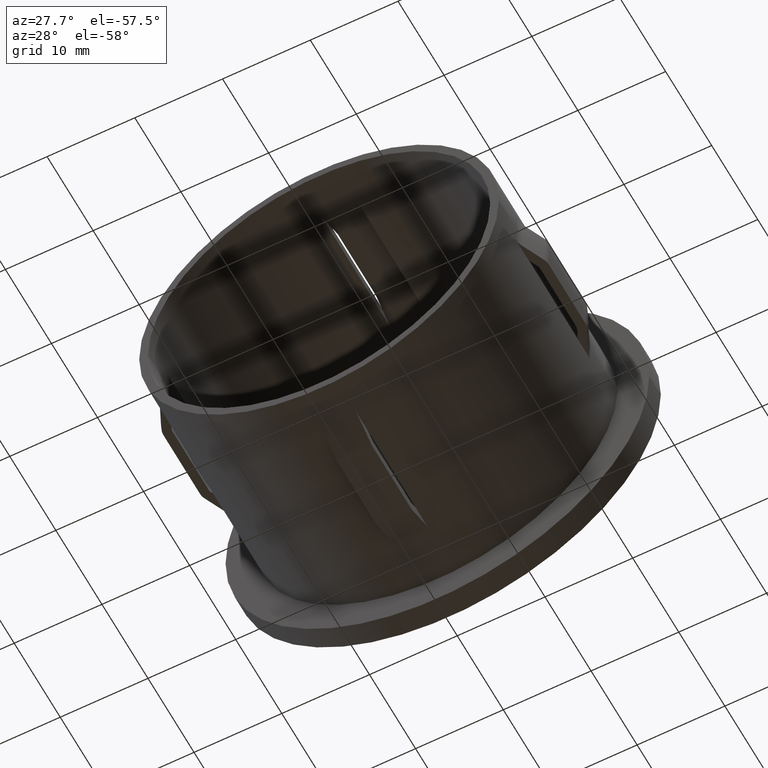
[diagram: clean part render]
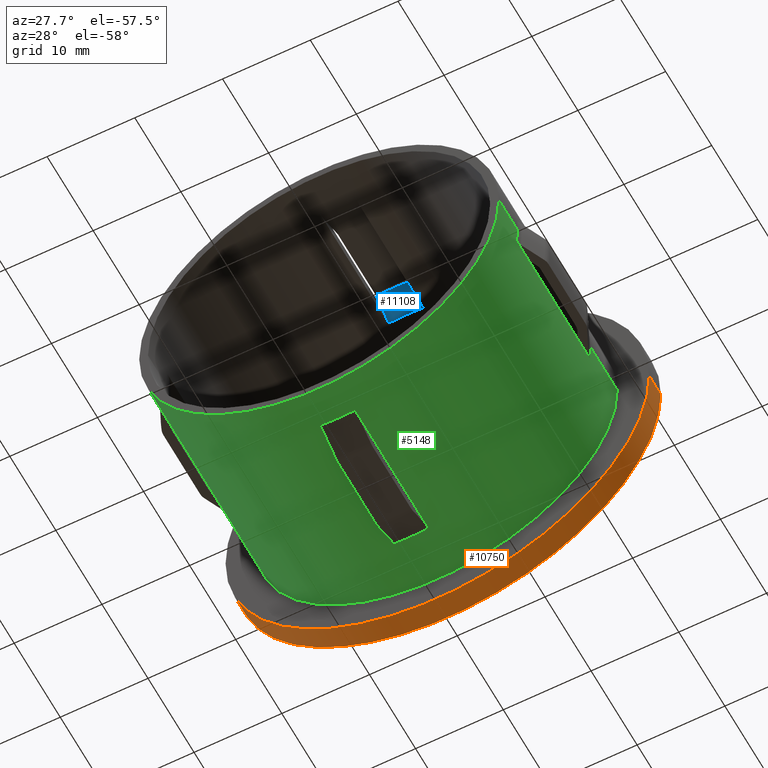
[diagram: same view with three faces highlighted in distinct colors, each labeled with its STEP entity id]
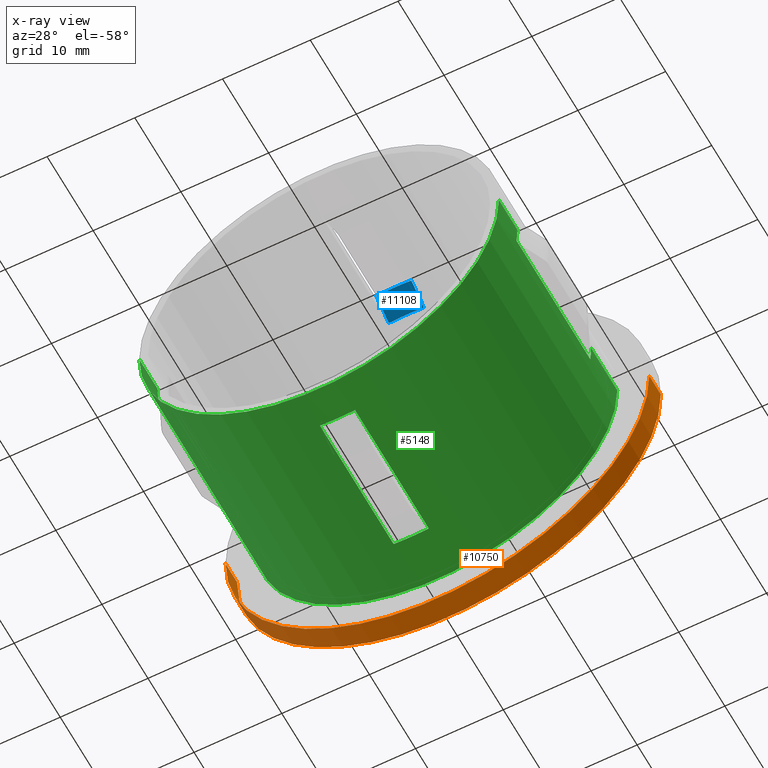
[diagram: x-ray of the same camera — body ghosted, the three highlighted faces saturated]
A machine part, auxiliary view with three faces highlighted in distinct colors.
The next image is the same camera in x-ray (body ghosted, the three faces saturated) — at least one of them is partly hidden behind the body in this view.
Their STEP definitions:

[orange] entity #10750 — the highlighted cylindrical surface (partial cylindrical patch) has radius 24.15 mm, axis along (-0, 1, -0).
#171 = CARTESIAN_POINT ( 'NONE',  ( -24.14999999999999900, 25.69999999999999200, 0.0000000000000000000 ) ) ;
#394 = DIRECTION ( 'NONE',  ( -1.714505518806297100E-016, 1.000000000000000000, -0.0000000000000000000 ) ) ;
#1303 = AXIS2_PLACEMENT_3D ( 'NONE', #8948, #394, #2562 ) ;
#1698 = VERTEX_POINT ( 'NONE', #3394 ) ;
#1744 = DIRECTION ( 'NONE',  ( -1.000000000000000000, -1.436623996668163300E-016, 0.0000000000000000000 ) ) ;
#1772 = VECTOR ( 'NONE', #6225, 1000.000000000000000 ) ;
#2083 = ORIENTED_EDGE ( 'NONE', *, *, #5008, .F. ) ;
#2562 = DIRECTION ( 'NONE',  ( -1.000000000000000000, -1.436623996668163300E-016, 0.0000000000000000000 ) ) ;
#2816 = LINE ( 'NONE', #7230, #11028 ) ;
#3081 = DIRECTION ( 'NONE',  ( -1.000000000000000000, -1.436623996668163300E-016, 0.0000000000000000000 ) ) ;
#3238 = VERTEX_POINT ( 'NONE', #3967 ) ;
#3311 = EDGE_CURVE ( 'NONE', #5087, #3238, #2816, .T. ) ;
#3394 = CARTESIAN_POINT ( 'NONE',  ( -24.14999999999999900, 28.19999999999999200, 0.0000000000000000000 ) ) ;
#3967 = CARTESIAN_POINT ( 'NONE',  ( 24.14999999999999900, 28.19999999999999900, 2.957522019940857900E-015 ) ) ;
#4310 = EDGE_CURVE ( 'NONE', #12518, #1698, #10157, .T. ) ;
#4425 = ORIENTED_EDGE ( 'NONE', *, *, #4310, .T. ) ;
#4917 = CARTESIAN_POINT ( 'NONE',  ( -24.14999999999999900, 28.19999999999999600, 0.0000000000000000000 ) ) ;
#5008 = EDGE_CURVE ( 'NONE', #3238, #1698, #6644, .T. ) ;
#5087 = VERTEX_POINT ( 'NONE', #9822 ) ;
#5155 = AXIS2_PLACEMENT_3D ( 'NONE', #12770, #12677, #1744 ) ;
#5967 = ORIENTED_EDGE ( 'NONE', *, *, #12761, .T. ) ;
#6225 = DIRECTION ( 'NONE',  ( -1.714505518806297100E-016, 1.000000000000000000, -0.0000000000000000000 ) ) ;
#6576 = CYLINDRICAL_SURFACE ( 'NONE', #1303, 24.14999999999999900 ) ;
#6644 = CIRCLE ( 'NONE', #12626, 24.14999999999999900 ) ;
#7230 = CARTESIAN_POINT ( 'NONE',  ( 24.14999999999999900, 28.20000000000000300, 2.957522019940857900E-015 ) ) ;
#8387 = DIRECTION ( 'NONE',  ( -1.714505518806297100E-016, 1.000000000000000000, -0.0000000000000000000 ) ) ;
#8619 = FACE_OUTER_BOUND ( 'NONE', #13494, .T. ) ;
#8948 = CARTESIAN_POINT ( 'NONE',  ( -2.449293598294708900E-016, 28.19999999999999900, 0.0000000000000000000 ) ) ;
#9506 = DIRECTION ( 'NONE',  ( -1.714505518806297100E-016, 1.000000000000000000, -0.0000000000000000000 ) ) ;
#9822 = CARTESIAN_POINT ( 'NONE',  ( 24.14999999999999900, 25.69999999999999900, 2.957522019940857900E-015 ) ) ;
#10157 = LINE ( 'NONE', #4917, #1772 ) ;
#10250 = ORIENTED_EDGE ( 'NONE', *, *, #3311, .F. ) ;
#10750 = ADVANCED_FACE ( 'NONE', ( #8619 ), #6576, .T. ) ;
#11028 = VECTOR ( 'NONE', #9506, 1000.000000000000000 ) ;
#12518 = VERTEX_POINT ( 'NONE', #171 ) ;
#12626 = AXIS2_PLACEMENT_3D ( 'NONE', #14003, #8387, #3081 ) ;
#12677 = DIRECTION ( 'NONE',  ( -1.714505518806297100E-016, 1.000000000000000000, -0.0000000000000000000 ) ) ;
#12761 = EDGE_CURVE ( 'NONE', #5087, #12518, #13196, .T. ) ;
#12770 = CARTESIAN_POINT ( 'NONE',  ( 1.836970198721039300E-016, 25.69999999999999600, 0.0000000000000000000 ) ) ;
#13196 = CIRCLE ( 'NONE', #5155, 24.14999999999999900 ) ;
#13494 = EDGE_LOOP ( 'NONE', ( #10250, #5967, #4425, #2083 ) ) ;
#14003 = CARTESIAN_POINT ( 'NONE',  ( -2.449293598294701500E-016, 28.19999999999999600, 0.0000000000000000000 ) ) ;

[blue] entity #11108 — the highlighted conical surface has half-angle 24.912 deg.
#398 = ORIENTED_EDGE ( 'NONE', *, *, #6013, .T. ) ;
#621 = ORIENTED_EDGE ( 'NONE', *, *, #2278, .F. ) ;
#769 = CARTESIAN_POINT ( 'NONE',  ( -1.999999999999996200, 18.94692731722802000, 19.63099760598235100 ) ) ;
#830 = CARTESIAN_POINT ( 'NONE',  ( 2.000000000000004900, 18.94692731722803500, 19.63099760598238300 ) ) ;
#886 = CIRCLE ( 'NONE', #11032, 19.73261429730196800 ) ;
#1216 = ORIENTED_EDGE ( 'NONE', *, *, #13238, .T. ) ;
#1516 = CARTESIAN_POINT ( 'NONE',  ( -1.999999999999996200, 17.05315212496558200, 20.51490939557035300 ) ) ;
#1700 = CARTESIAN_POINT ( 'NONE',  ( -1.999999999999996200, 16.21061453655438800, 20.90803797569656600 ) ) ;
#1852 = AXIS2_PLACEMENT_3D ( 'NONE', #11457, #2135, #12272 ) ;
#1891 = CARTESIAN_POINT ( 'NONE',  ( -1.999999999999996200, 17.39135533050912100, 20.35707982279013400 ) ) ;
#1908 = VERTEX_POINT ( 'NONE', #7125 ) ;
#2113 = AXIS2_PLACEMENT_3D ( 'NONE', #9776, #12962, #13059 ) ;
#2135 = DIRECTION ( 'NONE',  ( 1.714505518806297100E-016, -1.000000000000000000, 0.0000000000000000000 ) ) ;
#2237 = CARTESIAN_POINT ( 'NONE',  ( 2.000000000000004900, 16.57012973044801600, 20.74029511923067700 ) ) ;
#2278 = EDGE_CURVE ( 'NONE', #13425, #13890, #5186, .T. ) ;
#2336 = CARTESIAN_POINT ( 'NONE',  ( 2.000000000000004900, 17.05315212496557500, 20.51490939557035300 ) ) ;
#2979 = FACE_OUTER_BOUND ( 'NONE', #9151, .T. ) ;
#3246 = CARTESIAN_POINT ( 'NONE',  ( 2.000000000000004900, 17.29465829608850000, 20.40220576310316900 ) ) ;
#3449 = B_SPLINE_CURVE_WITH_KNOTS ( 'NONE', 3,
 ( #9247, #1516, #3896, #11546, #8210, #3806, #1700 ),
 .UNSPECIFIED., .F., .F.,
 ( 4, 3, 4 ),
 ( 0.004445768728191110800, 0.005245297360551536900, 0.005642019976791071500 ),
 .UNSPECIFIED. ) ;
#3806 = CARTESIAN_POINT ( 'NONE',  ( -1.999999999999996200, 16.33045372002804300, 20.85212537378268000 ) ) ;
#3896 = CARTESIAN_POINT ( 'NONE',  ( -1.999999999999996200, 16.81164254834684600, 20.62760573085573100 ) ) ;
#4975 = VERTEX_POINT ( 'NONE', #5074 ) ;
#5034 = ORIENTED_EDGE ( 'NONE', *, *, #13969, .T. ) ;
#5074 = CARTESIAN_POINT ( 'NONE',  ( -1.999999999999996200, 16.21061453655438800, 20.90803797569656600 ) ) ;
#5076 = EDGE_CURVE ( 'NONE', #4975, #1908, #8305, .T. ) ;
#5186 = B_SPLINE_CURVE_WITH_KNOTS ( 'NONE', 3,
 ( #769, #7283, #6327, #13962, #1891, #13813, #10542 ),
 .UNSPECIFIED., .F., .F.,
 ( 4, 3, 4 ),
 ( 0.004111649119950974700, 0.005774977657220927600, 0.005935040142207855700 ),
 .UNSPECIFIED. ) ;
#5536 = CARTESIAN_POINT ( 'NONE',  ( 2.000000000000004900, 18.44453540345014300, 19.86553810285747400 ) ) ;
#5577 = CARTESIAN_POINT ( 'NONE',  ( 2.000000000000004900, 16.45029212435912300, 20.79621110187691400 ) ) ;
#5627 = CARTESIAN_POINT ( 'NONE',  ( 2.000000000000004900, 17.94212695751784600, 20.10004319004825000 ) ) ;
#5792 = CARTESIAN_POINT ( 'NONE',  ( 1.341515058223361400E-015, 18.94692731722803500, 0.0000000000000000000 ) ) ;
#6013 = EDGE_CURVE ( 'NONE', #9408, #11445, #10450, .T. ) ;
#6327 = CARTESIAN_POINT ( 'NONE',  ( -1.999999999999996200, 17.94212695751784600, 20.10004319004825000 ) ) ;
#6717 = CARTESIAN_POINT ( 'NONE',  ( 2.000000000000004900, 16.81164254834684600, 20.62760573085573100 ) ) ;
#6842 = ORIENTED_EDGE ( 'NONE', *, *, #8540, .F. ) ;
#7125 = CARTESIAN_POINT ( 'NONE',  ( 2.000000000000004900, 16.21061453655438800, 20.90803797569656600 ) ) ;
#7283 = CARTESIAN_POINT ( 'NONE',  ( -1.999999999999996200, 18.44453540345014600, 19.86553810285747400 ) ) ;
#7747 = CARTESIAN_POINT ( 'NONE',  ( 2.000000000000004900, 17.39135533050911800, 20.35707982279013400 ) ) ;
#7814 = DIRECTION ( 'NONE',  ( -1.000000000000000000, -1.758229750848568500E-016, 0.0000000000000000000 ) ) ;
#7998 = CARTESIAN_POINT ( 'NONE',  ( 2.000000000000004900, 17.29465829608850000, 20.40220576310316900 ) ) ;
#8210 = CARTESIAN_POINT ( 'NONE',  ( -1.999999999999996200, 16.45029212435912300, 20.79621110187691400 ) ) ;
#8305 = CIRCLE ( 'NONE', #2113, 21.00347714053960500 ) ;
#8391 = CARTESIAN_POINT ( 'NONE',  ( -1.999999999999996200, 17.29465829608850300, 20.40220576310316500 ) ) ;
#8540 = EDGE_CURVE ( 'NONE', #13890, #4975, #3449, .T. ) ;
#8866 = B_SPLINE_CURVE_WITH_KNOTS ( 'NONE', 3,
 ( #13157, #2336, #6717, #2237, #5577, #12919, #8955 ),
 .UNSPECIFIED., .F., .F.,
 ( 4, 3, 4 ),
 ( 0.004445768728191113400, 0.005245297360551531700, 0.005642019976791062800 ),
 .UNSPECIFIED. ) ;
#8955 = CARTESIAN_POINT ( 'NONE',  ( 2.000000000000004900, 16.21061453655438800, 20.90803797569656600 ) ) ;
#9151 = EDGE_LOOP ( 'NONE', ( #1216, #398, #5034, #10503, #6842, #621 ) ) ;
#9247 = CARTESIAN_POINT ( 'NONE',  ( -1.999999999999996200, 17.29465829608850300, 20.40220576310316500 ) ) ;
#9408 = VERTEX_POINT ( 'NONE', #830 ) ;
#9776 = CARTESIAN_POINT ( 'NONE',  ( 1.810657394587878400E-015, 16.21061453655438800, 0.0000000000000000000 ) ) ;
#10003 = DIRECTION ( 'NONE',  ( -1.714505518806297100E-016, 1.000000000000000000, -0.0000000000000000000 ) ) ;
#10450 = B_SPLINE_CURVE_WITH_KNOTS ( 'NONE', 3,
 ( #12167, #5536, #5627, #11035, #7747, #12127, #3246 ),
 .UNSPECIFIED., .F., .F.,
 ( 4, 3, 4 ),
 ( 0.004111649119950971200, 0.005774977657220923200, 0.005935040142207855700 ),
 .UNSPECIFIED. ) ;
#10503 = ORIENTED_EDGE ( 'NONE', *, *, #5076, .F. ) ;
#10542 = CARTESIAN_POINT ( 'NONE',  ( -1.999999999999996200, 17.29465829608850300, 20.40220576310316500 ) ) ;
#11032 = AXIS2_PLACEMENT_3D ( 'NONE', #5792, #10003, #7814 ) ;
#11035 = CARTESIAN_POINT ( 'NONE',  ( 2.000000000000004900, 17.43970364157326000, 20.33451641090529100 ) ) ;
#11108 = ADVANCED_FACE ( 'NONE', ( #2979 ), #13888, .F. ) ;
#11330 = CARTESIAN_POINT ( 'NONE',  ( -1.999999999999996200, 18.94692731722802000, 19.63099760598235100 ) ) ;
#11445 = VERTEX_POINT ( 'NONE', #7998 ) ;
#11457 = CARTESIAN_POINT ( 'NONE',  ( 1.341515058223361400E-015, 18.94692731722803500, 0.0000000000000000000 ) ) ;
#11546 = CARTESIAN_POINT ( 'NONE',  ( -1.999999999999996200, 16.57012973044801600, 20.74029511923067700 ) ) ;
#12127 = CARTESIAN_POINT ( 'NONE',  ( 2.000000000000004900, 17.34300688155723000, 20.37964293921490000 ) ) ;
#12167 = CARTESIAN_POINT ( 'NONE',  ( 2.000000000000004900, 18.94692731722803500, 19.63099760598238300 ) ) ;
#12272 = DIRECTION ( 'NONE',  ( 1.000000000000000000, 1.758229750848568500E-016, 0.0000000000000000000 ) ) ;
#12919 = CARTESIAN_POINT ( 'NONE',  ( 2.000000000000004900, 16.33045372002804300, 20.85212537378268000 ) ) ;
#12962 = DIRECTION ( 'NONE',  ( -1.714505518806297100E-016, 1.000000000000000000, -0.0000000000000000000 ) ) ;
#13059 = DIRECTION ( 'NONE',  ( -1.000000000000000000, -1.651844086928398800E-016, 0.0000000000000000000 ) ) ;
#13157 = CARTESIAN_POINT ( 'NONE',  ( 2.000000000000004900, 17.29465829608850000, 20.40220576310316900 ) ) ;
#13238 = EDGE_CURVE ( 'NONE', #13425, #9408, #886, .T. ) ;
#13425 = VERTEX_POINT ( 'NONE', #11330 ) ;
#13813 = CARTESIAN_POINT ( 'NONE',  ( -1.999999999999996200, 17.34300688155723300, 20.37964293921489700 ) ) ;
#13888 = CONICAL_SURFACE ( 'NONE', #1852, 19.73261429730196800, 0.4348000597357492600 ) ;
#13890 = VERTEX_POINT ( 'NONE', #8391 ) ;
#13962 = CARTESIAN_POINT ( 'NONE',  ( -1.999999999999996200, 17.43970364157326000, 20.33451641090529100 ) ) ;
#13969 = EDGE_CURVE ( 'NONE', #11445, #1908, #8866, .T. ) ;

[green] entity #5148 — the highlighted cylindrical surface (partial cylindrical patch) has radius 20.5 mm, axis along (-0, 1, -0).
#22 = DIRECTION ( 'NONE',  ( -1.714505518806297100E-016, 1.000000000000000000, -0.0000000000000000000 ) ) ;
#39 = LINE ( 'NONE', #11470, #5701 ) ;
#125 = VERTEX_POINT ( 'NONE', #10366 ) ;
#145 = DIRECTION ( 'NONE',  ( -1.714505518806297100E-016, 1.000000000000000000, -0.0000000000000000000 ) ) ;
#182 = ORIENTED_EDGE ( 'NONE', *, *, #7863, .F. ) ;
#269 = DIRECTION ( 'NONE',  ( -0.0000000000000000000, -1.000000000000000000, -0.0000000000000000000 ) ) ;
#280 = CIRCLE ( 'NONE', #9067, 20.49999999999999600 ) ;
#287 = DIRECTION ( 'NONE',  ( 0.0000000000000000000, -1.000000000000000000, 0.0000000000000000000 ) ) ;
#489 = CARTESIAN_POINT ( 'NONE',  ( -20.49999999999999300, 3.999999999999993300, 0.0000000000000000000 ) ) ;
#539 = EDGE_CURVE ( 'NONE', #1850, #5371, #9519, .T. ) ;
#730 = VERTEX_POINT ( 'NONE', #8797 ) ;
#770 = VERTEX_POINT ( 'NONE', #2353 ) ;
#806 = EDGE_CURVE ( 'NONE', #7692, #770, #11579, .T. ) ;
#900 = CARTESIAN_POINT ( 'NONE',  ( 20.40220576310317200, 17.29465829608849600, -2.000000000000000000 ) ) ;
#966 = EDGE_CURVE ( 'NONE', #3933, #9298, #9867, .T. ) ;
#1024 = DIRECTION ( 'NONE',  ( -1.714505518806297100E-016, 1.000000000000000000, -0.0000000000000000000 ) ) ;
#1039 = VERTEX_POINT ( 'NONE', #3961 ) ;
#1066 = DIRECTION ( 'NONE',  ( -1.000000000000000000, -1.692413147294446200E-016, 0.0000000000000000000 ) ) ;
#1154 = CARTESIAN_POINT ( 'NONE',  ( -1.999999999999996200, 51.72464896776082800, -20.40220576310316900 ) ) ;
#1162 = CARTESIAN_POINT ( 'NONE',  ( 3.904173995681768100E-015, 3.999999999999996400, 0.0000000000000000000 ) ) ;
#1364 = ORIENTED_EDGE ( 'NONE', *, *, #539, .T. ) ;
#1388 = VERTEX_POINT ( 'NONE', #10804 ) ;
#1438 = CARTESIAN_POINT ( 'NONE',  ( -20.40220576310316500, 20.00000000000000000, -2.000000000000000000 ) ) ;
#1473 = ORIENTED_EDGE ( 'NONE', *, *, #1514, .F. ) ;
#1481 = CARTESIAN_POINT ( 'NONE',  ( 2.000000000000004900, 20.00000000000000000, -20.40220576310316900 ) ) ;
#1514 = EDGE_CURVE ( 'NONE', #5667, #8999, #2505, .T. ) ;
#1571 = EDGE_CURVE ( 'NONE', #3712, #9298, #7289, .T. ) ;
#1606 = VERTEX_POINT ( 'NONE', #4577 ) ;
#1626 = DIRECTION ( 'NONE',  ( -0.0000000000000000000, -1.000000000000000000, -0.0000000000000000000 ) ) ;
#1694 = ORIENTED_EDGE ( 'NONE', *, *, #5863, .F. ) ;
#1699 = CARTESIAN_POINT ( 'NONE',  ( -1.999999999999996200, 3.999999999999993300, -20.40220576310316900 ) ) ;
#1720 = DIRECTION ( 'NONE',  ( -0.0000000000000000000, -1.000000000000000000, -0.0000000000000000000 ) ) ;
#1733 = VECTOR ( 'NONE', #22, 1000.000000000000000 ) ;
#1743 = DIRECTION ( 'NONE',  ( -1.714505518806297100E-016, 1.000000000000000000, -0.0000000000000000000 ) ) ;
#1839 = LINE ( 'NONE', #7624, #5786 ) ;
#1850 = VERTEX_POINT ( 'NONE', #1438 ) ;
#1948 = DIRECTION ( 'NONE',  ( -1.714505518806297100E-016, 1.000000000000000000, -0.0000000000000000000 ) ) ;
#2189 = VECTOR ( 'NONE', #287, 1000.000000000000000 ) ;
#2199 = CARTESIAN_POINT ( 'NONE',  ( 20.40220576310317200, 51.72464896776082800, -2.000000000000000000 ) ) ;
#2217 = CARTESIAN_POINT ( 'NONE',  ( 20.49999999999999600, 25.69999999999999900, 2.510525938252074100E-015 ) ) ;
#2270 = VERTEX_POINT ( 'NONE', #13797 ) ;
#2314 = EDGE_CURVE ( 'NONE', #1039, #11290, #3853, .T. ) ;
#2353 = CARTESIAN_POINT ( 'NONE',  ( 2.000000000000004900, 17.29465829608850300, -20.40220576310316900 ) ) ;
#2362 = CARTESIAN_POINT ( 'NONE',  ( 3.904173995681768100E-015, 3.999999999999996400, 0.0000000000000000000 ) ) ;
#2385 = CARTESIAN_POINT ( 'NONE',  ( 2.000000000000005300, 19.99999999999999300, -20.40220576310316900 ) ) ;
#2392 = ORIENTED_EDGE ( 'NONE', *, *, #13268, .F. ) ;
#2505 = LINE ( 'NONE', #3349, #10195 ) ;
#2624 = VERTEX_POINT ( 'NONE', #489 ) ;
#2702 = LINE ( 'NONE', #2199, #5768 ) ;
#2742 = AXIS2_PLACEMENT_3D ( 'NONE', #1162, #9871, #1066 ) ;
#2864 = FACE_BOUND ( 'NONE', #8482, .T. ) ;
#2913 = ORIENTED_EDGE ( 'NONE', *, *, #5640, .F. ) ;
#2968 = DIRECTION ( 'NONE',  ( 0.0000000000000000000, -1.000000000000000000, 0.0000000000000000000 ) ) ;
#2996 = VERTEX_POINT ( 'NONE', #12221 ) ;
#3203 = CARTESIAN_POINT ( 'NONE',  ( -20.40220576310316500, 3.999999999999989800, -2.000000000000000000 ) ) ;
#3276 = CARTESIAN_POINT ( 'NONE',  ( -2.449293598294708900E-016, 28.19999999999999900, 0.0000000000000000000 ) ) ;
#3345 = CIRCLE ( 'NONE', #10264, 20.50000000000000000 ) ;
#3349 = CARTESIAN_POINT ( 'NONE',  ( -20.40220576310316500, 51.72464896776082800, -2.000000000000000000 ) ) ;
#3439 = DIRECTION ( 'NONE',  ( -1.000000000000000000, -1.692413147294446200E-016, 0.0000000000000000000 ) ) ;
#3461 = ORIENTED_EDGE ( 'NONE', *, *, #12273, .F. ) ;
#3586 = CARTESIAN_POINT ( 'NONE',  ( 2.000000000000004900, 3.999999999999993300, -20.40220576310316900 ) ) ;
#3712 = VERTEX_POINT ( 'NONE', #3586 ) ;
#3730 = DIRECTION ( 'NONE',  ( -0.0000000000000000000, -1.000000000000000000, -0.0000000000000000000 ) ) ;
#3853 = LINE ( 'NONE', #7395, #5741 ) ;
#3918 = EDGE_CURVE ( 'NONE', #5371, #13406, #10334, .T. ) ;
#3930 = EDGE_CURVE ( 'NONE', #2996, #13601, #12030, .T. ) ;
#3933 = VERTEX_POINT ( 'NONE', #5440 ) ;
#3955 = ORIENTED_EDGE ( 'NONE', *, *, #2314, .F. ) ;
#3961 = CARTESIAN_POINT ( 'NONE',  ( 20.50000000000000000, 19.99999999999999600, 2.510525938252074500E-015 ) ) ;
#3987 = CIRCLE ( 'NONE', #2742, 20.49999999999999600 ) ;
#4014 = DIRECTION ( 'NONE',  ( -1.000000000000000000, -1.692413147294446000E-016, 0.0000000000000000000 ) ) ;
#4039 = VECTOR ( 'NONE', #1720, 1000.000000000000000 ) ;
#4112 = EDGE_CURVE ( 'NONE', #5834, #8620, #3987, .T. ) ;
#4272 = DIRECTION ( 'NONE',  ( -1.714505518806297100E-016, 1.000000000000000000, -0.0000000000000000000 ) ) ;
#4276 = DIRECTION ( 'NONE',  ( -1.714505518806297100E-016, 1.000000000000000000, -0.0000000000000000000 ) ) ;
#4300 = LINE ( 'NONE', #10023, #1733 ) ;
#4498 = ORIENTED_EDGE ( 'NONE', *, *, #3930, .T. ) ;
#4577 = CARTESIAN_POINT ( 'NONE',  ( -1.999999999999996200, 20.00000000000000000, -20.40220576310316900 ) ) ;
#4642 = CARTESIAN_POINT ( 'NONE',  ( 2.000000000000004900, 51.72464896776082800, -20.40220576310316900 ) ) ;
#4903 = CARTESIAN_POINT ( 'NONE',  ( -20.49999999999999600, 25.69999999999999200, 0.0000000000000000000 ) ) ;
#5021 = AXIS2_PLACEMENT_3D ( 'NONE', #3276, #4272, #7684 ) ;
#5116 = CARTESIAN_POINT ( 'NONE',  ( -20.40220576310316500, 20.00000000000000000, -2.000000000000000000 ) ) ;
#5148 = ADVANCED_FACE ( 'NONE', ( #11244, #2864 ), #13630, .T. ) ;
#5188 = EDGE_CURVE ( 'NONE', #770, #2270, #14135, .T. ) ;
#5206 = CARTESIAN_POINT ( 'NONE',  ( -20.40220576310316500, 17.29465829608850300, -2.000000000000000000 ) ) ;
#5371 = VERTEX_POINT ( 'NONE', #13525 ) ;
#5440 = CARTESIAN_POINT ( 'NONE',  ( -1.999999999999996200, 6.705341703911489800, -20.40220576310316900 ) ) ;
#5585 = DIRECTION ( 'NONE',  ( 0.0000000000000000000, -1.000000000000000000, 0.0000000000000000000 ) ) ;
#5640 = EDGE_CURVE ( 'NONE', #125, #5834, #12968, .T. ) ;
#5667 = VERTEX_POINT ( 'NONE', #5206 ) ;
#5701 = VECTOR ( 'NONE', #1626, 1000.000000000000000 ) ;
#5715 = VECTOR ( 'NONE', #14113, 1000.000000000000000 ) ;
#5741 = VECTOR ( 'NONE', #4276, 1000.000000000000000 ) ;
#5742 = LINE ( 'NONE', #1154, #9480 ) ;
#5768 = VECTOR ( 'NONE', #5585, 1000.000000000000000 ) ;
#5776 = DIRECTION ( 'NONE',  ( -1.714505518806297100E-016, 1.000000000000000000, -0.0000000000000000000 ) ) ;
#5786 = VECTOR ( 'NONE', #7718, 1000.000000000000000 ) ;
#5824 = DIRECTION ( 'NONE',  ( -1.000000000000000000, -1.692413147294446000E-016, 0.0000000000000000000 ) ) ;
#5834 = VERTEX_POINT ( 'NONE', #7071 ) ;
#5863 = EDGE_CURVE ( 'NONE', #2270, #3712, #9534, .T. ) ;
#6029 = ORIENTED_EDGE ( 'NONE', *, *, #966, .T. ) ;
#6268 = AXIS2_PLACEMENT_3D ( 'NONE', #10083, #9986, #3439 ) ;
#6366 = AXIS2_PLACEMENT_3D ( 'NONE', #11636, #7301, #9529 ) ;
#6900 = CARTESIAN_POINT ( 'NONE',  ( -20.40220576310316500, 6.705341703911484400, -2.000000000000000000 ) ) ;
#7071 = CARTESIAN_POINT ( 'NONE',  ( 20.50000000000000000, 4.000000000000000000, 2.510525938252074500E-015 ) ) ;
#7080 = CARTESIAN_POINT ( 'NONE',  ( -1.999999999999996200, 20.00000000000000000, -20.40220576310316900 ) ) ;
#7140 = EDGE_CURVE ( 'NONE', #8290, #8620, #1839, .T. ) ;
#7145 = ORIENTED_EDGE ( 'NONE', *, *, #13950, .T. ) ;
#7250 = VECTOR ( 'NONE', #1948, 1000.000000000000000 ) ;
#7289 = CIRCLE ( 'NONE', #6268, 20.49999999999999600 ) ;
#7301 = DIRECTION ( 'NONE',  ( -1.714505518806297100E-016, 1.000000000000000000, -0.0000000000000000000 ) ) ;
#7309 = ORIENTED_EDGE ( 'NONE', *, *, #10304, .T. ) ;
#7354 = CARTESIAN_POINT ( 'NONE',  ( 20.40220576310317200, 20.00000000000000000, -2.000000000000000000 ) ) ;
#7395 = CARTESIAN_POINT ( 'NONE',  ( 20.49999999999999600, 28.20000000000000300, 2.510525938252074100E-015 ) ) ;
#7595 = EDGE_CURVE ( 'NONE', #13601, #8290, #2702, .T. ) ;
#7624 = CARTESIAN_POINT ( 'NONE',  ( 20.40220576310317200, 20.00000000000000000, -2.000000000000000000 ) ) ;
#7682 = CARTESIAN_POINT ( 'NONE',  ( 20.49999999999999600, 28.20000000000000300, 2.510525938252074100E-015 ) ) ;
#7684 = DIRECTION ( 'NONE',  ( -1.000000000000000000, -1.692413147294446200E-016, 0.0000000000000000000 ) ) ;
#7692 = VERTEX_POINT ( 'NONE', #2385 ) ;
#7718 = DIRECTION ( 'NONE',  ( -0.0000000000000000000, -1.000000000000000000, -0.0000000000000000000 ) ) ;
#7863 = EDGE_CURVE ( 'NONE', #11290, #13406, #280, .T. ) ;
#8019 = AXIS2_PLACEMENT_3D ( 'NONE', #9366, #9459, #4014 ) ;
#8290 = VERTEX_POINT ( 'NONE', #9791 ) ;
#8415 = CIRCLE ( 'NONE', #6366, 20.50000000000000000 ) ;
#8445 = ORIENTED_EDGE ( 'NONE', *, *, #1571, .F. ) ;
#8458 = EDGE_CURVE ( 'NONE', #1039, #2996, #10039, .T. ) ;
#8482 = EDGE_LOOP ( 'NONE', ( #9238, #13347, #7309, #8801, #6029, #8445, #1694, #8782 ) ) ;
#8583 = DIRECTION ( 'NONE',  ( -1.000000000000000000, -1.692413147294446000E-016, 0.0000000000000000000 ) ) ;
#8620 = VERTEX_POINT ( 'NONE', #12819 ) ;
#8698 = DIRECTION ( 'NONE',  ( -0.0000000000000000000, -1.000000000000000000, -0.0000000000000000000 ) ) ;
#8782 = ORIENTED_EDGE ( 'NONE', *, *, #5188, .F. ) ;
#8797 = CARTESIAN_POINT ( 'NONE',  ( -1.999999999999996200, 17.29465829608850000, -20.40220576310316900 ) ) ;
#8801 = ORIENTED_EDGE ( 'NONE', *, *, #9804, .T. ) ;
#8825 = AXIS2_PLACEMENT_3D ( 'NONE', #2362, #145, #10420 ) ;
#8880 = CARTESIAN_POINT ( 'NONE',  ( -1.999999999999996200, 20.00000000000000000, -20.40220576310316900 ) ) ;
#8999 = VERTEX_POINT ( 'NONE', #6900 ) ;
#9067 = AXIS2_PLACEMENT_3D ( 'NONE', #9471, #1743, #12720 ) ;
#9238 = ORIENTED_EDGE ( 'NONE', *, *, #806, .F. ) ;
#9241 = ORIENTED_EDGE ( 'NONE', *, *, #7595, .T. ) ;
#9298 = VERTEX_POINT ( 'NONE', #1699 ) ;
#9305 = LINE ( 'NONE', #8880, #10348 ) ;
#9366 = CARTESIAN_POINT ( 'NONE',  ( 1.160965165591693700E-015, 19.99999999999999300, 0.0000000000000000000 ) ) ;
#9396 = ORIENTED_EDGE ( 'NONE', *, *, #4112, .F. ) ;
#9459 = DIRECTION ( 'NONE',  ( -1.714505518806297100E-016, 1.000000000000000000, -0.0000000000000000000 ) ) ;
#9471 = CARTESIAN_POINT ( 'NONE',  ( 1.836970198721037800E-016, 25.69999999999999600, 0.0000000000000000000 ) ) ;
#9473 = EDGE_CURVE ( 'NONE', #7692, #1606, #3345, .T. ) ;
#9480 = VECTOR ( 'NONE', #2968, 1000.000000000000000 ) ;
#9519 = CIRCLE ( 'NONE', #8019, 20.50000000000000000 ) ;
#9529 = DIRECTION ( 'NONE',  ( -1.000000000000000000, -1.714505518806297600E-016, 0.0000000000000000000 ) ) ;
#9534 = LINE ( 'NONE', #1481, #14152 ) ;
#9690 = ORIENTED_EDGE ( 'NONE', *, *, #13870, .T. ) ;
#9791 = CARTESIAN_POINT ( 'NONE',  ( 20.40220576310317200, 6.705341703911494200, -2.000000000000000000 ) ) ;
#9802 = DIRECTION ( 'NONE',  ( 0.0000000000000000000, -1.000000000000000000, 0.0000000000000000000 ) ) ;
#9804 = EDGE_CURVE ( 'NONE', #730, #3933, #5742, .T. ) ;
#9806 = VECTOR ( 'NONE', #11768, 1000.000000000000000 ) ;
#9867 = LINE ( 'NONE', #7080, #4039 ) ;
#9871 = DIRECTION ( 'NONE',  ( -1.714505518806297100E-016, 1.000000000000000000, -0.0000000000000000000 ) ) ;
#9986 = DIRECTION ( 'NONE',  ( -1.714505518806297100E-016, 1.000000000000000000, -0.0000000000000000000 ) ) ;
#10023 = CARTESIAN_POINT ( 'NONE',  ( -20.49999999999999600, 28.19999999999999600, 0.0000000000000000000 ) ) ;
#10039 = CIRCLE ( 'NONE', #13629, 20.50000000000000000 ) ;
#10083 = CARTESIAN_POINT ( 'NONE',  ( 3.904173995681768100E-015, 3.999999999999996400, 0.0000000000000000000 ) ) ;
#10195 = VECTOR ( 'NONE', #9802, 1000.000000000000000 ) ;
#10264 = AXIS2_PLACEMENT_3D ( 'NONE', #12915, #1024, #8583 ) ;
#10304 = EDGE_CURVE ( 'NONE', #1606, #730, #9305, .T. ) ;
#10334 = LINE ( 'NONE', #12826, #7250 ) ;
#10348 = VECTOR ( 'NONE', #8698, 1000.000000000000000 ) ;
#10366 = CARTESIAN_POINT ( 'NONE',  ( 20.50000000000000700, 4.528936159929513800E-017, 2.510525938252074900E-015 ) ) ;
#10396 = VECTOR ( 'NONE', #11759, 1000.000000000000000 ) ;
#10420 = DIRECTION ( 'NONE',  ( -1.000000000000000000, -1.692413147294446200E-016, 0.0000000000000000000 ) ) ;
#10548 = VECTOR ( 'NONE', #269, 1000.000000000000000 ) ;
#10579 = ORIENTED_EDGE ( 'NONE', *, *, #8458, .T. ) ;
#10769 = ORIENTED_EDGE ( 'NONE', *, *, #7140, .T. ) ;
#10804 = CARTESIAN_POINT ( 'NONE',  ( -20.49999999999999600, -6.984183265506524500E-015, 0.0000000000000000000 ) ) ;
#10873 = VERTEX_POINT ( 'NONE', #3203 ) ;
#11215 = CARTESIAN_POINT ( 'NONE',  ( 1.160965165591693700E-015, 19.99999999999999300, 0.0000000000000000000 ) ) ;
#11244 = FACE_OUTER_BOUND ( 'NONE', #12811, .T. ) ;
#11290 = VERTEX_POINT ( 'NONE', #2217 ) ;
#11317 = CARTESIAN_POINT ( 'NONE',  ( 2.000000000000004900, 20.00000000000000000, -20.40220576310316900 ) ) ;
#11470 = CARTESIAN_POINT ( 'NONE',  ( -20.40220576310316500, 20.00000000000000000, -2.000000000000000000 ) ) ;
#11579 = LINE ( 'NONE', #11317, #10548 ) ;
#11636 = CARTESIAN_POINT ( 'NONE',  ( 4.589976203204287100E-015, -3.469446951953614200E-015, 0.0000000000000000000 ) ) ;
#11759 = DIRECTION ( 'NONE',  ( -1.714505518806297100E-016, 1.000000000000000000, -0.0000000000000000000 ) ) ;
#11768 = DIRECTION ( 'NONE',  ( -0.0000000000000000000, -1.000000000000000000, -0.0000000000000000000 ) ) ;
#11804 = ORIENTED_EDGE ( 'NONE', *, *, #11885, .F. ) ;
#11885 = EDGE_CURVE ( 'NONE', #8999, #10873, #12347, .T. ) ;
#12030 = LINE ( 'NONE', #7354, #5715 ) ;
#12221 = CARTESIAN_POINT ( 'NONE',  ( 20.40220576310317200, 20.00000000000000000, -2.000000000000000000 ) ) ;
#12273 = EDGE_CURVE ( 'NONE', #1850, #5667, #39, .T. ) ;
#12347 = LINE ( 'NONE', #5116, #9806 ) ;
#12674 = CIRCLE ( 'NONE', #8825, 20.49999999999999600 ) ;
#12720 = DIRECTION ( 'NONE',  ( -1.000000000000000000, -1.692413147294446200E-016, 0.0000000000000000000 ) ) ;
#12811 = EDGE_LOOP ( 'NONE', ( #2913, #9690, #7145, #2392, #11804, #1473, #3461, #1364, #13898, #182, #3955, #10579, #4498, #9241, #10769, #9396 ) ) ;
#12819 = CARTESIAN_POINT ( 'NONE',  ( 20.40220576310317200, 3.999999999999989800, -2.000000000000000000 ) ) ;
#12826 = CARTESIAN_POINT ( 'NONE',  ( -20.49999999999999600, 28.19999999999999600, 0.0000000000000000000 ) ) ;
#12915 = CARTESIAN_POINT ( 'NONE',  ( 1.160965165591693700E-015, 19.99999999999999300, 0.0000000000000000000 ) ) ;
#12968 = LINE ( 'NONE', #7682, #10396 ) ;
#13268 = EDGE_CURVE ( 'NONE', #10873, #2624, #12674, .T. ) ;
#13347 = ORIENTED_EDGE ( 'NONE', *, *, #9473, .T. ) ;
#13406 = VERTEX_POINT ( 'NONE', #4903 ) ;
#13525 = CARTESIAN_POINT ( 'NONE',  ( -20.50000000000000000, 19.99999999999998900, 0.0000000000000000000 ) ) ;
#13601 = VERTEX_POINT ( 'NONE', #900 ) ;
#13629 = AXIS2_PLACEMENT_3D ( 'NONE', #11215, #5776, #5824 ) ;
#13630 = CYLINDRICAL_SURFACE ( 'NONE', #5021, 20.49999999999999600 ) ;
#13797 = CARTESIAN_POINT ( 'NONE',  ( 2.000000000000004900, 6.705341703911484400, -20.40220576310316900 ) ) ;
#13870 = EDGE_CURVE ( 'NONE', #125, #1388, #8415, .T. ) ;
#13898 = ORIENTED_EDGE ( 'NONE', *, *, #3918, .T. ) ;
#13950 = EDGE_CURVE ( 'NONE', #1388, #2624, #4300, .T. ) ;
#14113 = DIRECTION ( 'NONE',  ( -0.0000000000000000000, -1.000000000000000000, -0.0000000000000000000 ) ) ;
#14135 = LINE ( 'NONE', #4642, #2189 ) ;
#14152 = VECTOR ( 'NONE', #3730, 1000.000000000000000 ) ;